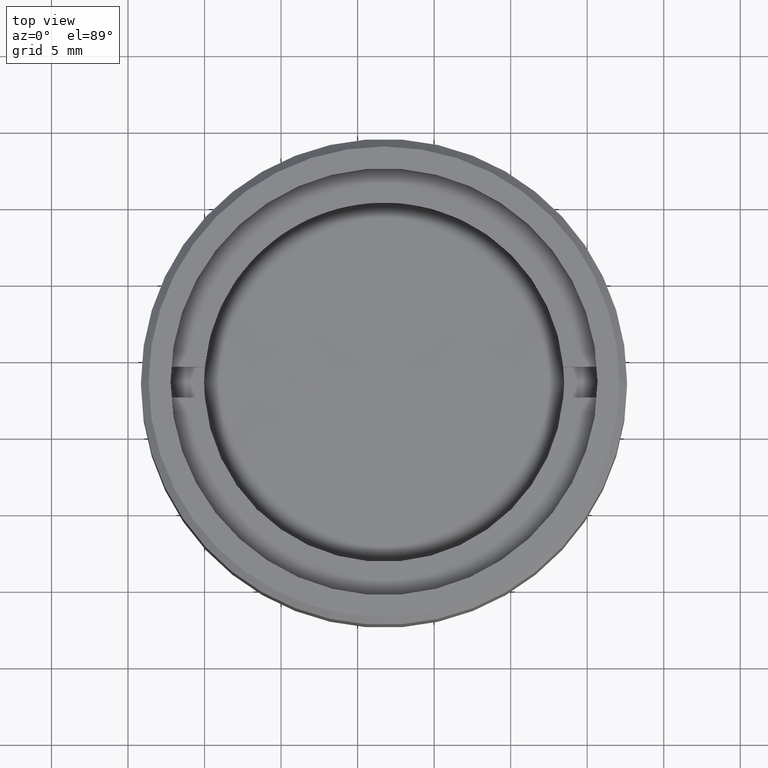
[diagram: clean part render]
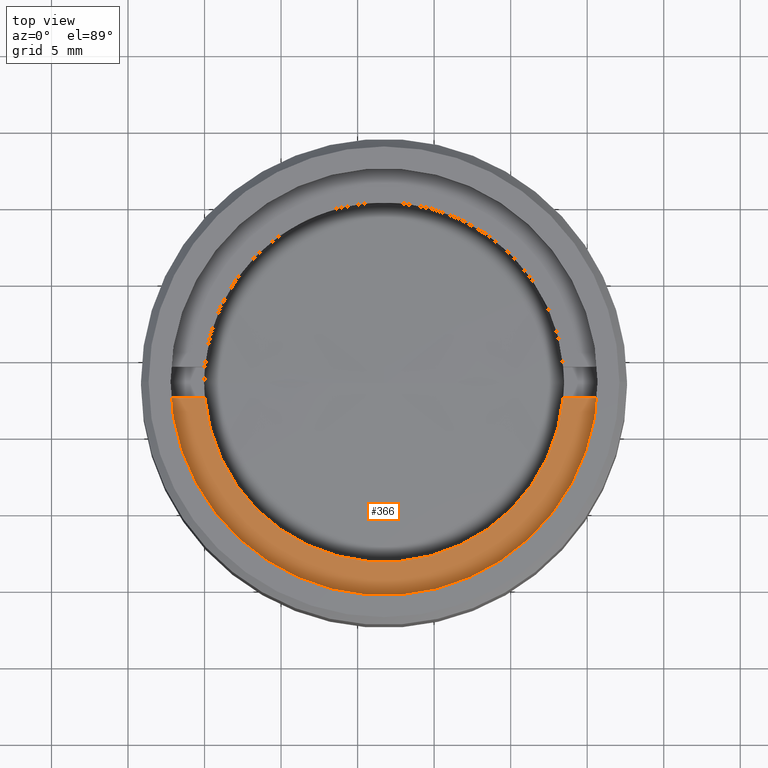
[diagram: same view with one face highlighted and labeled with its STEP entity id]
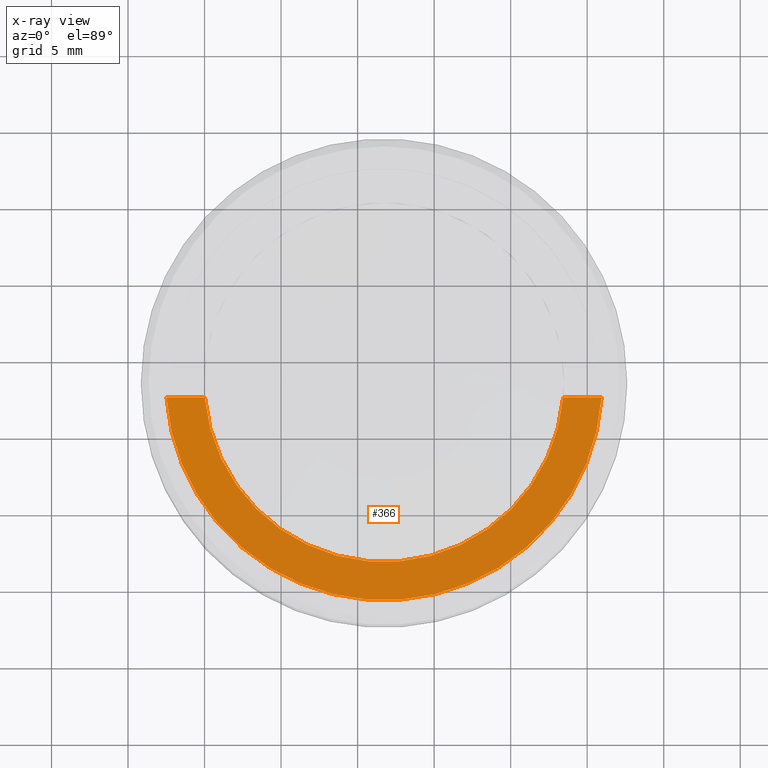
[diagram: x-ray of the same camera — body ghosted, the highlighted face saturated]
A machine part, top view. The second image highlights one B-rep face of the part: STEP entity #366.
The next image is the same camera in x-ray: the body ghosted, the highlighted face saturated — about 0% of this face is hidden behind the body in this view.
In plain terms, the highlighted planar face has unit normal (0, 0, 1).
Its self-contained STEP definition (entity closure, byte-faithful):
#40 = DIRECTION ( 'NONE',  ( 1.000000000000000000, 0.000000000000000000, -0.000000000000000000 ) ) ;
#43 = ORIENTED_EDGE ( 'NONE', *, *, #1580, .T. ) ;
#53 = VERTEX_POINT ( 'NONE', #1487 ) ;
#68 = VERTEX_POINT ( 'NONE', #836 ) ;
#114 = CARTESIAN_POINT ( 'NONE',  ( -30.62185530834360492, -1.000000000000000000, 2.500000000000000000 ) ) ;
#202 = VERTEX_POINT ( 'NONE', #1533 ) ;
#298 = CARTESIAN_POINT ( 'NONE',  ( 0.000000000000000000, 0.000000000000000000, 2.500000000000000000 ) ) ;
#366 = ADVANCED_FACE ( 'NONE', ( #1523 ), #1621, .T. ) ;
#372 = AXIS2_PLACEMENT_3D ( 'NONE', #298, #604, #837 ) ;
#376 = CARTESIAN_POINT ( 'NONE',  ( -30.62185530834360492, -1.000000000000000000, 2.500000000000000000 ) ) ;
#396 = CIRCLE ( 'NONE', #372, 11.75000000000000178 ) ;
#466 = DIRECTION ( 'NONE',  ( 0.000000000000000000, 0.000000000000000000, 1.000000000000000000 ) ) ;
#467 = ORIENTED_EDGE ( 'NONE', *, *, #480, .F. ) ;
#480 = EDGE_CURVE ( 'NONE', #202, #1657, #928, .T. ) ;
#481 = VECTOR ( 'NONE', #658, 1000.000000000000000 ) ;
#528 = LINE ( 'NONE', #114, #481 ) ;
#546 = AXIS2_PLACEMENT_3D ( 'NONE', #1465, #1335, #40 ) ;
#554 = EDGE_CURVE ( 'NONE', #1657, #68, #396, .T. ) ;
#599 = CIRCLE ( 'NONE', #1235, 14.25000000000000000 ) ;
#604 = DIRECTION ( 'NONE',  ( 0.000000000000000000, 0.000000000000000000, 1.000000000000000000 ) ) ;
#652 = CARTESIAN_POINT ( 'NONE',  ( -11.70736947396809668, -1.000000000000000000, 2.500000000000000000 ) ) ;
#658 = DIRECTION ( 'NONE',  ( 1.000000000000000000, 0.000000000000000000, 0.000000000000000000 ) ) ;
#744 = EDGE_LOOP ( 'NONE', ( #467, #43, #789, #1691 ) ) ;
#758 = CARTESIAN_POINT ( 'NONE',  ( 0.000000000000000000, 0.000000000000000000, 2.500000000000000000 ) ) ;
#789 = ORIENTED_EDGE ( 'NONE', *, *, #1098, .F. ) ;
#836 = CARTESIAN_POINT ( 'NONE',  ( 11.70736947396809668, -1.000000000000000000, 2.500000000000000000 ) ) ;
#837 = DIRECTION ( 'NONE',  ( 1.000000000000000000, 0.000000000000000000, 0.000000000000000000 ) ) ;
#928 = LINE ( 'NONE', #376, #1341 ) ;
#1098 = EDGE_CURVE ( 'NONE', #68, #53, #528, .T. ) ;
#1235 = AXIS2_PLACEMENT_3D ( 'NONE', #758, #466, #1681 ) ;
#1335 = DIRECTION ( 'NONE',  ( 0.000000000000000000, 0.000000000000000000, 1.000000000000000000 ) ) ;
#1341 = VECTOR ( 'NONE', #1471, 1000.000000000000000 ) ;
#1465 = CARTESIAN_POINT ( 'NONE',  ( 0.000000000000000000, 0.000000000000000000, 2.500000000000000000 ) ) ;
#1471 = DIRECTION ( 'NONE',  ( 1.000000000000000000, 0.000000000000000000, 0.000000000000000000 ) ) ;
#1487 = CARTESIAN_POINT ( 'NONE',  ( 14.21486897582949993, -1.000000000000000000, 2.500000000000000000 ) ) ;
#1523 = FACE_OUTER_BOUND ( 'NONE', #744, .T. ) ;
#1533 = CARTESIAN_POINT ( 'NONE',  ( -14.21486897582949993, -1.000000000000000000, 2.500000000000000000 ) ) ;
#1580 = EDGE_CURVE ( 'NONE', #202, #53, #599, .T. ) ;
#1621 = PLANE ( 'NONE',  #546 ) ;
#1657 = VERTEX_POINT ( 'NONE', #652 ) ;
#1681 = DIRECTION ( 'NONE',  ( 1.000000000000000000, 0.000000000000000000, 0.000000000000000000 ) ) ;
#1691 = ORIENTED_EDGE ( 'NONE', *, *, #554, .F. ) ;